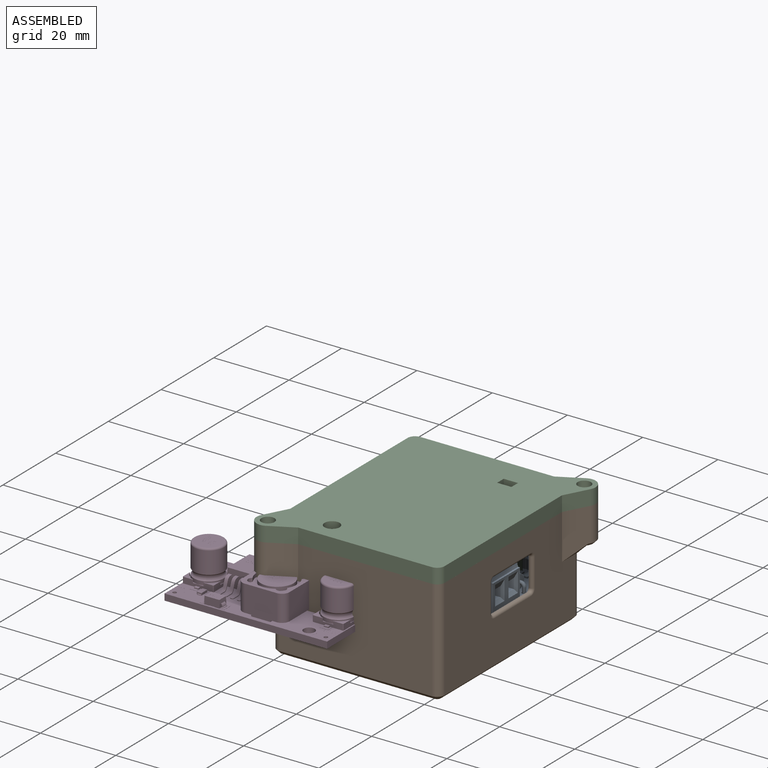
[diagram: assembled view]
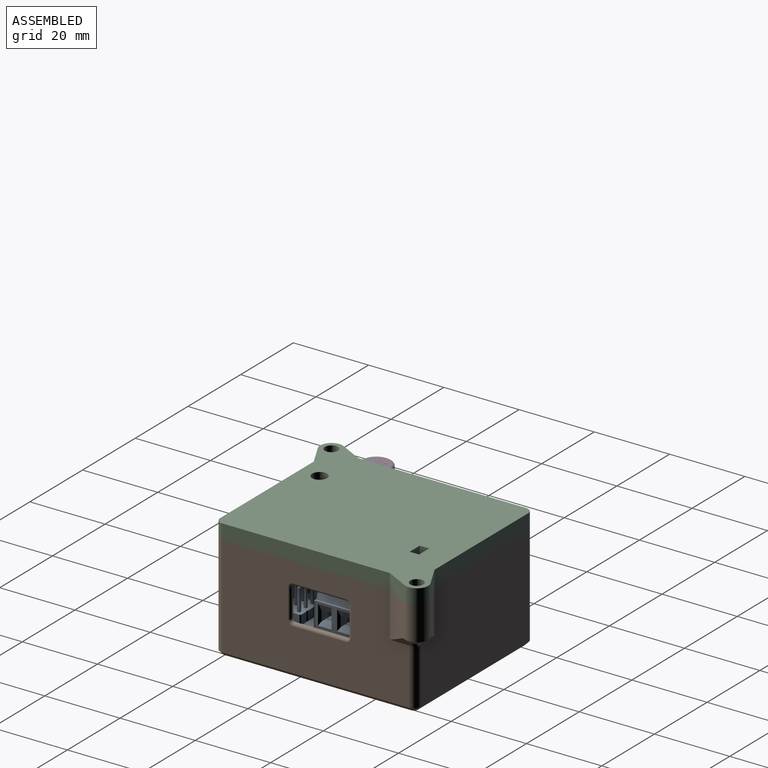
[diagram: assembled view, second angle]
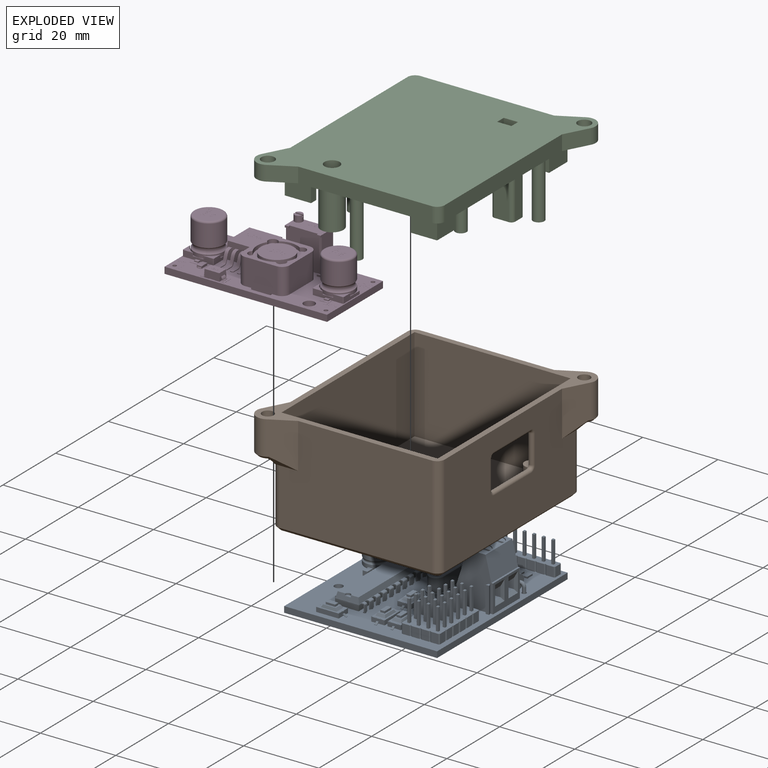
[diagram: exploded view]
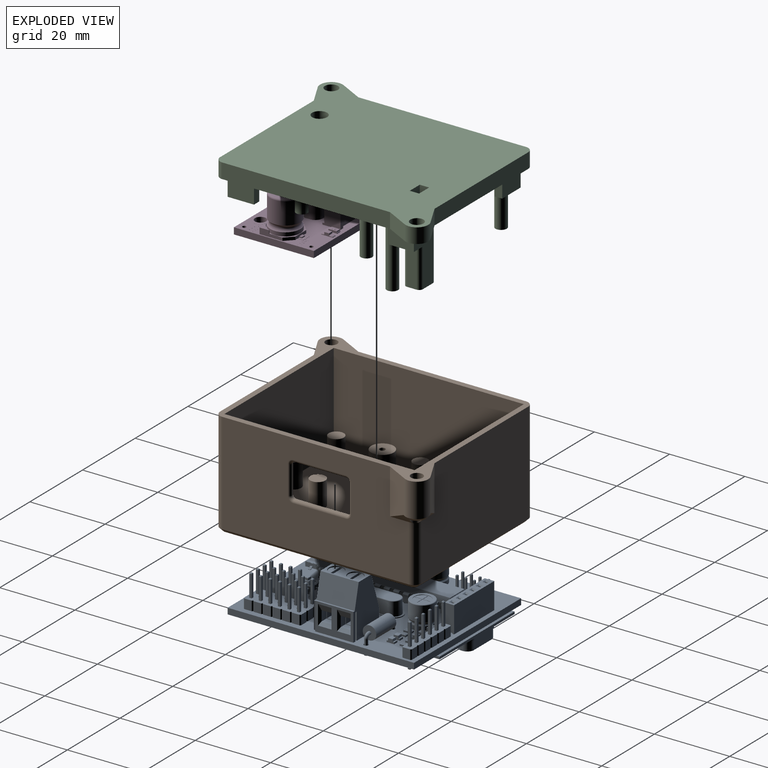
[diagram: exploded view, second angle]
FCSTD DOCUMENT  (FreeCAD 0.19R24366 (Git))
Label: case
License: All rights reserved
LicenseURL: http://en.wikipedia.org/wiki/All_rights_reserved
objects: Part::Feature×72, App::Link×34, Sketcher::SketchObject×17, PartDesign::Pad×17, PartDesign::Pocket×13, App::Part×7, PartDesign::Chamfer×4, PartDesign::Fillet×2, PartDesign::Body×2, PartDesign::CoordinateSystem×1
note: 164 computed .brp shape members not serialized (recipe doc carries the construction recipe); baked Part::Feature solids carry a one-line shape summary decoded from their .brp

FEATURE [PartDesign::CoordinateSystem] Local_CS_5e60
  AttacherType = Attacher::AttachEngine3D
FEATURE [Part::Feature] Pcb_5e60
  Placement = pos=(-87.63,182.88,0) rot=(0,0,1;0rad)
  shape: bbox 49.53 x 40.64 x 1.6 mm, 87 faces (baked)
FEATURE [Sketcher::SketchObject] PCB_Sketch_5e60
  FullyConstrained = false
  sketch-geometry (4):
    g0: LineSegment StartX=0 StartY=40.64 StartZ=0 EndX=49.53 EndY=40.64 EndZ=0
    g1: LineSegment StartX=49.53 StartY=40.64 StartZ=0 EndX=49.53 EndY=0 EndZ=0
    g2: LineSegment StartX=49.53 StartY=0 StartZ=0 EndX=0 EndY=0 EndZ=0
    g3: LineSegment StartX=0 StartY=0 StartZ=0 EndX=0 EndY=40.64 EndZ=0
  constraints (4):
    c: Coincident(g2,g3)
    c: Coincident(g0,g3)
    c: Coincident(g1,g2)
    c: Coincident(g0,g1)
FEATURE [App::Part] Board_Geoms_5e60
  Group = -> [Local_CS_5e60,Pcb_5e60,PCB_Sketch_5e60]
  Origin = -> Origin
FEATURE [Part::Feature] Shape  label="R13_R_0805_2012Metric_9239460ce258"
  Placement = pos=(42.926,5.969,0) rot=(0,0,1;3.14159rad)
  shape: bbox 2 x 1.2 x 0.45 mm, 26 faces (baked)
FEATURE [Part::Feature] Shape001  label="J3_PinHeader_1x04_P254mm_Vertical_8a4efdbcd238"
  Placement = pos=(11.938,10.414,0) rot=(0,0,-1;1.5708rad)
  shape: bbox 10.16 x 2.54 x 11.54 mm, 100 faces (baked)
FEATURE [Part::Feature] Shape002  label="D6_LED_0805_2012Metric_4e96e5ba2d1d"
  Placement = pos=(39.4735,8.128,0) rot=(0,0,1;0rad)
  shape: bbox 2 x 1.25 x 1.1 mm, 50 faces (baked)
FEATURE [App::Link] D6_LED_0805_2012Metric_4e96e5ba2d1d_ln_  label="D3_LED_0805_2012Metric_d2eff50d3d60"
  LinkPlacement = pos=(43.053,28.448,0) rot=(0,0,-1;1.5708rad)
  LinkedObject = -> Shape002
  Placement = pos=(43.053,28.448,0) rot=(0,0,-1;1.5708rad)
FEATURE [Part::Feature] Shape003  label="J2_PinSocket_1x06_P254mm_Vertical_7a796b7907c3"
  Placement = pos=(46.99,18.288,0) rot=(0,0,1;3.14159rad)
  shape: bbox 2.54 x 15.24 x 10.1 mm, 196 faces (baked)
FEATURE [App::Link] R13_R_0805_2012Metric_9239460ce258_ln_  label="R14_R_0805_2012Metric_3532eaaadb21"
  LinkPlacement = pos=(42.926,8.128,0) rot=(0,0,1;3.14159rad)
  LinkedObject = -> Shape
  Placement = pos=(42.926,8.128,0) rot=(0,0,1;3.14159rad)
FEATURE [App::Link] D6_LED_0805_2012Metric_4e96e5ba2d1d_ln_001  label="D2_LED_0805_2012Metric_7b36af262a84"
  LinkPlacement = pos=(42.926,10.2955,0) rot=(0,0,1;3.14159rad)
  LinkedObject = -> Shape002
  Placement = pos=(42.926,10.2955,0) rot=(0,0,1;3.14159rad)
FEATURE [Part::Feature] Shape004  label="SW1_SW_SPST_CK_RS282G05A3_488ee964aa62"
  Placement = pos=(7.366,14.478,0) rot=(0,0,1;0rad)
  shape: bbox 8 x 3.5 x 2.5 mm, 109 faces (baked)
FEATURE [App::Link] R13_R_0805_2012Metric_9239460ce258_ln_001  label="R7_R_0805_2012Metric_1ef3c385b97b"
  LinkPlacement = pos=(39.4735,10.2955,0) rot=(0,0,1;0rad)
  LinkedObject = -> Shape
  Placement = pos=(39.4735,10.2955,0) rot=(0,0,1;0rad)
FEATURE [Part::Feature] Shape005  label="J7_PinHeader_1x06_P254mm_Vertical_94c0aa569162"
  Placement = pos=(4.318,5.334,0) rot=(0,0,1;1.5708rad)
  shape: bbox 15.24 x 2.54 x 11.54 mm, 148 faces (baked)
FEATURE [Part::Feature] Shape006  label="C2_C_0805_2012Metric_5444de25dee9"
  Placement = pos=(43.434,15.24,0) rot=(0,0,1;1.5708rad)
  shape: bbox 1.25 x 2 x 1.25 mm, 28 faces (baked)
FEATURE [App::Link] R13_R_0805_2012Metric_9239460ce258_ln_002  label="R8_R_0805_2012Metric_b32a172a4839"
  LinkPlacement = pos=(43.053,24.9955,0) rot=(0,0,1;1.5708rad)
  LinkedObject = -> Shape
  Placement = pos=(43.053,24.9955,0) rot=(0,0,1;1.5708rad)
FEATURE [App::Link] J7_PinHeader_1x06_P254mm_Vertical_94c0aa569162_ln_  label="J4_PinHeader_1x06_P254mm_Vertical_c8f04728201e"
  LinkPlacement = pos=(17.018,7.874,0) rot=(0,0,-1;1.5708rad)
  LinkedObject = -> Shape005
  Placement = pos=(17.018,7.874,0) rot=(0,0,-1;1.5708rad)
FEATURE [App::Link] SW1_SW_SPST_CK_RS282G05A3_488ee964aa62_ln_  label="SW3_SW_SPST_CK_RS282G05A3_ab11c83a9a79"
  LinkPlacement = pos=(7.366,18.796,0) rot=(0,0,1;0rad)
  LinkedObject = -> Shape004
  Placement = pos=(7.366,18.796,0) rot=(0,0,1;0rad)
FEATURE [App::Link] R13_R_0805_2012Metric_9239460ce258_ln_003  label="R6_R_0805_2012Metric_52bbeaaa678b"
  LinkPlacement = pos=(39.4735,12.3275,0) rot=(0,0,1;0rad)
  LinkedObject = -> Shape
  Placement = pos=(39.4735,12.3275,0) rot=(0,0,1;0rad)
FEATURE [App::Link] C2_C_0805_2012Metric_5444de25dee9_ln_  label="C9_C_0805_2012Metric_db99f0c45e01"
  LinkPlacement = pos=(23.688,35.052,0) rot=(0,0,1;0rad)
  LinkedObject = -> Shape006
  Placement = pos=(23.688,35.052,0) rot=(0,0,1;0rad)
FEATURE [Part::Feature] Shape007  label="C12_CP_Radial_D63mm_P250mm_f7c0eadd8c3e"
  Placement = pos=(29.337,35.433,0) rot=(0,0,1;1.5708rad)
  shape: bbox 8.053 x 7.785 x 8.3 mm, 46 faces (baked)
FEATURE [App::Link] SW1_SW_SPST_CK_RS282G05A3_488ee964aa62_ln_001  label="SW4_SW_SPST_CK_RS282G05A3_2f75d3642137"
  LinkPlacement = pos=(17.272,18.796,0) rot=(0,0,1;3.14159rad)
  LinkedObject = -> Shape004
  Placement = pos=(17.272,18.796,0) rot=(0,0,1;3.14159rad)
FEATURE [App::Link] C12_CP_Radial_D63mm_P250mm_f7c0eadd8c3e_ln_  label="C1_CP_Radial_D63mm_P250mm_bbf1ea3c856d"
  LinkPlacement = pos=(39.878,15.748,0) rot=(0,0,1;1.5708rad)
  LinkedObject = -> Shape007
  Placement = pos=(39.878,15.748,0) rot=(0,0,1;1.5708rad)
FEATURE [App::Link] J7_PinHeader_1x06_P254mm_Vertical_94c0aa569162_ln_001  label="J5_PinHeader_1x06_P254mm_Vertical_0eced9f7dace"
  LinkPlacement = pos=(46.99,2.032,0) rot=(0,0,1;3.14159rad)
  LinkedObject = -> Shape005
  Placement = pos=(46.99,2.032,0) rot=(0,0,1;3.14159rad)
FEATURE [Part::Feature] Shape008  label="J1_TerminalBlock_Phoenix_MKDS_15_2_508_1x02_P508mm_Horizontal_42128cfd7225"
  Placement = pos=(25.141,5.537,0) rot=(0,0,1;0rad)
  shape: bbox 10.9 x 9.8 x 17.3 mm, 89 faces (baked)
FEATURE [Part::Feature] Shape009  label="D4_D_DO-15_P10.16mm_Horizontal_ef1d17ca753a"
  Placement = pos=(35.56,11.938,0) rot=(0,0,-1;1.5708rad)
  shape: bbox 3.62 x 11.28 x 6.61 mm, 15 faces (baked)
FEATURE [App::Link] J7_PinHeader_1x06_P254mm_Vertical_94c0aa569162_ln_002  label="J6_PinHeader_1x06_P254mm_Vertical_8a1521370a01"
  LinkPlacement = pos=(4.318,2.794,0) rot=(0,0,1;1.5708rad)
  LinkedObject = -> Shape005
  Placement = pos=(4.318,2.794,0) rot=(0,0,1;1.5708rad)
FEATURE [App::Link] SW1_SW_SPST_CK_RS282G05A3_488ee964aa62_ln_002  label="SW2_SW_SPST_CK_RS282G05A3_de4650c7a7b3"
  LinkPlacement = pos=(17.272,14.478,0) rot=(0,0,1;3.14159rad)
  LinkedObject = -> Shape004
  Placement = pos=(17.272,14.478,0) rot=(0,0,1;3.14159rad)
FEATURE [App::Link] SW1_SW_SPST_CK_RS282G05A3_488ee964aa62_ln_003  label="SW5_SW_SPST_CK_RS282G05A3_c04ca77f2dcc"
  LinkPlacement = pos=(3.302,30.226,0) rot=(0,0,-1;1.5708rad)
  LinkedObject = -> Shape004
  Placement = pos=(3.302,30.226,0) rot=(0,0,-1;1.5708rad)
FEATURE [Part::Feature] Shape010  label="Y1_Crystal_HC49-4H_Vertical_88712754ffd0"
  Placement = pos=(30.898,18.034,0) rot=(0,0,1;3.14159rad)
  shape: bbox 11.05 x 4.65 x 7 mm, 26 faces (baked)
FEATURE [App::Link] D6_LED_0805_2012Metric_4e96e5ba2d1d_ln_002  label="D1_LED_0805_2012Metric_93ab5e525f13"
  LinkPlacement = pos=(42.926,12.3275,0) rot=(0,0,1;3.14159rad)
  LinkedObject = -> Shape002
  Placement = pos=(42.926,12.3275,0) rot=(0,0,1;3.14159rad)
FEATURE [Part::Feature] Shape011  label="U4_DIP-28_W7.62mm_cc264bb5ac96"
  Placement = pos=(7.376,24.394,0) rot=(0,0,1;1.5708rad)
  shape: bbox 35.56 x 7.874 x 6.98 mm, 488 faces (baked)
FEATURE [App::Link] D6_LED_0805_2012Metric_4e96e5ba2d1d_ln_003  label="D5_LED_0805_2012Metric_81e2c5e28224"
  LinkPlacement = pos=(39.497,5.969,0) rot=(0,0,1;0rad)
  LinkedObject = -> Shape002
  Placement = pos=(39.497,5.969,0) rot=(0,0,1;0rad)
FEATURE [App::Part] Top_5e60
  Group = -> [Shape,Shape001,Shape002,D6_LED_0805_2012Metric_4e96e5ba2d1d_ln_,Shape003,R13_R_0805_2012Metric_9239460ce258_ln_,D6_LED_0805_2012Metric_4e96e5ba2d1d_ln_001,Shape004,R13_R_0805_2012Metric_9239460ce258_ln_001,Shape005,Shape006,R13_R_0805_2012Metric_9239460ce258_ln_002,J7_PinHeader_1x06_P254mm_Vertical_94c0aa569162_ln_,SW1_SW_SPST_CK_RS282G05A3_488ee964aa62_ln_,+15 more]
  Origin = -> Origin003
FEATURE [App::Link] R13_R_0805_2012Metric_9239460ce258_ln_004  label="R10_R_0805_2012Metric_f216959d7d6a"
  LinkPlacement = pos=(4.4215,18.796,-1.6) rot=(1,0,0;3.14159rad)
  LinkedObject = -> Shape
  Placement = pos=(4.4215,18.796,-1.6) rot=(1,0,0;3.14159rad)
FEATURE [App::Link] C2_C_0805_2012Metric_5444de25dee9_ln_001  label="C3_C_0805_2012Metric_346f4854bd54"
  LinkPlacement = pos=(33.528,15.174,-1.6) rot=(0.707107,-0.707107,0;3.14159rad)
  LinkedObject = -> Shape006
  Placement = pos=(33.528,15.174,-1.6) rot=(0.707107,-0.707107,0;3.14159rad)
FEATURE [App::Link] R13_R_0805_2012Metric_9239460ce258_ln_005  label="R11_R_0805_2012Metric_5b75cdb9bece"
  LinkPlacement = pos=(20.1695,18.796,-1.6) rot=(0,1,0;3.14159rad)
  LinkedObject = -> Shape
  Placement = pos=(20.1695,18.796,-1.6) rot=(0,1,0;3.14159rad)
FEATURE [App::Link] C2_C_0805_2012Metric_5444de25dee9_ln_002  label="C6_C_0805_2012Metric_f1bb335fc065"
  LinkPlacement = pos=(32.004,20.066,-1.6) rot=(1,0,0;3.14159rad)
  LinkedObject = -> Shape006
  Placement = pos=(32.004,20.066,-1.6) rot=(1,0,0;3.14159rad)
FEATURE [Part::Feature] Part__Feature  label="NRF24L01 WIFI Module v2"
  shape: bbox 15.25 x 28.5 x 0.63 mm, 6 faces (baked)
FEATURE [Part::Feature] Part__Feature001  label="NRF24L01 WIFI Module v003"
  shape: bbox 9.45 x 4.67 x 1.4 mm, 22 faces (baked)
FEATURE [Part::Feature] Part__Feature002  label="NRF24L01 WIFI Module v004"
  shape: bbox 0.5 x 0.5 x 8.13 mm, 14 faces (baked)
FEATURE [Part::Feature] Part__Feature003  label="NRF24L01 WIFI Module v005"
  shape: bbox 0.5 x 0.5 x 8.13 mm, 14 faces (baked)
FEATURE [Part::Feature] Part__Feature004  label="NRF24L01 WIFI Module v006"
  shape: bbox 0.5 x 0.5 x 8.13 mm, 14 faces (baked)
FEATURE [Part::Feature] Part__Feature005  label="NRF24L01 WIFI Module v007"
  shape: bbox 0.5 x 0.5 x 8.13 mm, 14 faces (baked)
FEATURE [Part::Feature] Part__Feature006  label="NRF24L01 WIFI Module v008"
  shape: bbox 0.5 x 0.5 x 8.13 mm, 14 faces (baked)
FEATURE [Part::Feature] Part__Feature007  label="NRF24L01 WIFI Module v009"
  shape: bbox 0.5 x 0.5 x 8.13 mm, 14 faces (baked)
FEATURE [Part::Feature] Part__Feature008  label="NRF24L01 WIFI Module v010"
  shape: bbox 0.5 x 0.5 x 8.13 mm, 14 faces (baked)
FEATURE [Part::Feature] Part__Feature009  label="NRF24L01 WIFI Module v011"
  shape: bbox 0.5 x 0.5 x 8.13 mm, 14 faces (baked)
FEATURE [Part::Feature] Part__Feature010  label="NRF24L01 WIFI Module v012"
  shape: bbox 4.42 x 10.68 x 3 mm, 130 faces (baked)
FEATURE [Part::Feature] Part__Feature011  label="NRF24L01 WIFI Module v013"
  shape: bbox 4 x 4 x 0.7 mm, 6 faces (baked)
FEATURE [Part::Feature] Part__Feature012  label="NRF24L01 WIFI Module v014"
  shape: bbox 11.53 x 7.8 x 0.02 mm, 36 faces (baked)
FEATURE [Part::Feature] Part__Feature013  label="NRF24L01 WIFI Module v015"
  shape: bbox 0.7 x 1.9 x 0.6 mm, 18 faces (baked)
FEATURE [Part::Feature] Part__Feature014  label="NRF24L01 WIFI Module v016"
  shape: bbox 0.5 x 0.5 x 0.1 mm, 6 faces (baked)
FEATURE [Part::Feature] Part__Feature015  label="NRF24L01 WIFI Module v017"
  shape: bbox 0.7 x 1.9 x 0.6 mm, 18 faces (baked)
FEATURE [Part::Feature] Part__Feature016  label="NRF24L01 WIFI Module v018"
  shape: bbox 0.5 x 0.5 x 0.1 mm, 6 faces (baked)
FEATURE [Part::Feature] Part__Feature017  label="NRF24L01 WIFI Module v019"
  shape: bbox 0.7 x 1.9 x 0.6 mm, 18 faces (baked)
FEATURE [Part::Feature] Part__Feature018  label="NRF24L01 WIFI Module v020"
  shape: bbox 0.5 x 0.5 x 0.1 mm, 6 faces (baked)
FEATURE [Part::Feature] Part__Feature019  label="NRF24L01 WIFI Module v021"
  shape: bbox 0.7 x 1.9 x 0.6 mm, 18 faces (baked)
FEATURE [Part::Feature] Part__Feature020  label="NRF24L01 WIFI Module v022"
  shape: bbox 0.5 x 0.5 x 0.1 mm, 6 faces (baked)
FEATURE [Part::Feature] Part__Feature021  label="NRF24L01 WIFI Module v023"
  shape: bbox 0.7 x 1.9 x 0.6 mm, 18 faces (baked)
FEATURE [Part::Feature] Part__Feature022  label="NRF24L01 WIFI Module v024"
  shape: bbox 0.5 x 0.5 x 0.1 mm, 6 faces (baked)
FEATURE [Part::Feature] Part__Feature023  label="NRF24L01 WIFI Module v025"
  shape: bbox 0.7 x 1.9 x 0.6 mm, 18 faces (baked)
FEATURE [Part::Feature] Part__Feature024  label="NRF24L01 WIFI Module v026"
  shape: bbox 0.5 x 0.5 x 0.1 mm, 6 faces (baked)
FEATURE [Part::Feature] Part__Feature025  label="NRF24L01 WIFI Module v027"
  shape: bbox 1.9 x 0.7 x 0.6 mm, 18 faces (baked)
FEATURE [Part::Feature] Part__Feature026  label="NRF24L01 WIFI Module v028"
  shape: bbox 0.5 x 0.5 x 0.1 mm, 6 faces (baked)
FEATURE [Part::Feature] Part__Feature027  label="NRF24L01 WIFI Module v029"
  shape: bbox 1.9 x 0.7 x 0.6 mm, 18 faces (baked)
FEATURE [Part::Feature] Part__Feature028  label="NRF24L01 WIFI Module v030"
  shape: bbox 0.5 x 0.5 x 0.1 mm, 6 faces (baked)
FEATURE [Part::Feature] Part__Feature029  label="NRF24L01 WIFI Module v031"
  shape: bbox 1.9 x 0.7 x 0.6 mm, 18 faces (baked)
FEATURE [Part::Feature] Part__Feature030  label="NRF24L01 WIFI Module v032"
  shape: bbox 0.5 x 0.5 x 0.1 mm, 6 faces (baked)
FEATURE [Part::Feature] Part__Feature031  label="NRF24L01 WIFI Module v033"
  shape: bbox 0.7 x 1.9 x 0.6 mm, 18 faces (baked)
FEATURE [Part::Feature] Part__Feature032  label="NRF24L01 WIFI Module v034"
  shape: bbox 0.5 x 0.5 x 0.1 mm, 6 faces (baked)
FEATURE [Part::Feature] Part__Feature033  label="NRF24L01 WIFI Module v035"
  shape: bbox 0.7 x 1.9 x 0.6 mm, 18 faces (baked)
FEATURE [Part::Feature] Part__Feature034  label="NRF24L01 WIFI Module v036"
  shape: bbox 0.5 x 0.5 x 0.1 mm, 6 faces (baked)
FEATURE [Part::Feature] Part__Feature035  label="NRF24L01 WIFI Module v037"
  shape: bbox 1.9 x 0.7 x 0.6 mm, 18 faces (baked)
FEATURE [Part::Feature] Part__Feature036  label="NRF24L01 WIFI Module v038"
  shape: bbox 0.5 x 0.5 x 0.1 mm, 6 faces (baked)
FEATURE [Part::Feature] Part__Feature037  label="NRF24L01 WIFI Module v039"
  shape: bbox 1.9 x 0.7 x 0.6 mm, 18 faces (baked)
FEATURE [Part::Feature] Part__Feature038  label="NRF24L01 WIFI Module v040"
  shape: bbox 0.5 x 0.5 x 0.1 mm, 6 faces (baked)
FEATURE [Part::Feature] Part__Feature039  label="NRF24L01 WIFI Module v041"
  shape: bbox 1.9 x 0.7 x 0.6 mm, 18 faces (baked)
FEATURE [Part::Feature] Part__Feature040  label="NRF24L01 WIFI Module v042"
  shape: bbox 0.5 x 0.5 x 0.1 mm, 6 faces (baked)
FEATURE [Part::Feature] Part__Feature041  label="NRF24L01 WIFI Module v043"
  shape: bbox 1.9 x 0.7 x 0.6 mm, 18 faces (baked)
FEATURE [Part::Feature] Part__Feature042  label="NRF24L01 WIFI Module v044"
  shape: bbox 0.5 x 0.5 x 0.1 mm, 6 faces (baked)
FEATURE [Part::Feature] Part__Feature043  label="NRF24L01 WIFI Module v045"
  shape: bbox 0.7 x 1.9 x 0.6 mm, 18 faces (baked)
FEATURE [Part::Feature] Part__Feature044  label="NRF24L01 WIFI Module v046"
  shape: bbox 0.5 x 0.5 x 0.1 mm, 6 faces (baked)
FEATURE [Part::Feature] Part__Feature045  label="NRF24L01 WIFI Module v047"
  shape: bbox 9.546 x 4.967 x 0.05 mm, 10 faces (baked)
FEATURE [App::Part] NRF24L01_WIFI_Module_v2  label="U3_NRF24L01 WIFI Module v048_7e74c5e8a189"
  Group = -> [Part__Feature,Part__Feature001,Part__Feature002,Part__Feature003,Part__Feature004,Part__Feature005,Part__Feature006,Part__Feature007,Part__Feature008,Part__Feature009,Part__Feature010,Part__Feature011,Part__Feature012,Part__Feature013,Part__Feature014,Part__Feature015,Part__Feature016,Part__Feature017,Part__Feature018,Part__Feature019,Part__Feature020,Part__Feature021,Part__Feature022,+23 more]
  Origin = -> Origin008
  Placement = pos=(33.195,39.719,-3.1) rot=(1,0,0;3.14159rad)
FEATURE [App::Link] R13_R_0805_2012Metric_9239460ce258_ln_006  label="R2_R_0805_2012Metric_b346234888c6"
  LinkPlacement = pos=(17.272,17.9305,-1.6) rot=(0.707107,-0.707107,0;3.14159rad)
  LinkedObject = -> Shape
  Placement = pos=(17.272,17.9305,-1.6) rot=(0.707107,-0.707107,0;3.14159rad)
FEATURE [App::Link] C2_C_0805_2012Metric_5444de25dee9_ln_003  label="C10_C_0805_2012Metric_faaf85beb588"
  LinkPlacement = pos=(25.08,27.94,-1.6) rot=(0,1,0;3.14159rad)
  LinkedObject = -> Shape006
  Placement = pos=(25.08,27.94,-1.6) rot=(0,1,0;3.14159rad)
FEATURE [App::Link] R13_R_0805_2012Metric_9239460ce258_ln_007  label="R3_R_0805_2012Metric_a6f29405e00f"
  LinkPlacement = pos=(35.56,9.398,-1.6) rot=(0,1,0;3.14159rad)
  LinkedObject = -> Shape
  Placement = pos=(35.56,9.398,-1.6) rot=(0,1,0;3.14159rad)
FEATURE [App::Link] C2_C_0805_2012Metric_5444de25dee9_ln_004  label="C7_C_0805_2012Metric_8a59f77c550b"
  LinkPlacement = pos=(28.702,27.94,-1.6) rot=(1,0,0;3.14159rad)
  LinkedObject = -> Shape006
  Placement = pos=(28.702,27.94,-1.6) rot=(1,0,0;3.14159rad)
FEATURE [App::Link] C2_C_0805_2012Metric_5444de25dee9_ln_005  label="C8_C_0805_2012Metric_eb188588e636"
  LinkPlacement = pos=(24.958,20.066,-1.6) rot=(0,1,0;3.14159rad)
  LinkedObject = -> Shape006
  Placement = pos=(24.958,20.066,-1.6) rot=(0,1,0;3.14159rad)
FEATURE [App::Link] R13_R_0805_2012Metric_9239460ce258_ln_008  label="R5_R_0805_2012Metric_46a83cf80d7d"
  LinkPlacement = pos=(35.56,5.334,-1.6) rot=(1,0,0;3.14159rad)
  LinkedObject = -> Shape
  Placement = pos=(35.56,5.334,-1.6) rot=(1,0,0;3.14159rad)
FEATURE [Part::Feature] Shape012  label="U1_SOT_223_2d4c363a9a8a"
  Placement = pos=(39.116,17.272,-1.6) rot=(1,0,0;3.14159rad)
  shape: bbox 7 x 6.5 x 1.7 mm, 78 faces (baked)
FEATURE [App::Link] C2_C_0805_2012Metric_5444de25dee9_ln_006  label="C11_C_0805_2012Metric_80d779149e98"
  LinkPlacement = pos=(31.877,36.383,-1.6) rot=(0.707107,0.707107,0;3.14159rad)
  LinkedObject = -> Shape006
  Placement = pos=(31.877,36.383,-1.6) rot=(0.707107,0.707107,0;3.14159rad)
FEATURE [App::Link] C2_C_0805_2012Metric_5444de25dee9_ln_007  label="C5_C_0805_2012Metric_b0587e8d2503"
  LinkPlacement = pos=(25.08,29.972,-1.6) rot=(0,1,0;3.14159rad)
  LinkedObject = -> Shape006
  Placement = pos=(25.08,29.972,-1.6) rot=(0,1,0;3.14159rad)
FEATURE [App::Link] R13_R_0805_2012Metric_9239460ce258_ln_009  label="R1_R_0805_2012Metric_78e1bd1c3511"
  LinkPlacement = pos=(4.4215,14.478,-1.6) rot=(1,0,0;3.14159rad)
  LinkedObject = -> Shape
  Placement = pos=(4.4215,14.478,-1.6) rot=(1,0,0;3.14159rad)
FEATURE [App::Link] C2_C_0805_2012Metric_5444de25dee9_ln_008  label="C4_C_0805_2012Metric_7c6e95933206"
  LinkPlacement = pos=(31.496,15.174,-1.6) rot=(0.707107,-0.707107,0;3.14159rad)
  LinkedObject = -> Shape006
  Placement = pos=(31.496,15.174,-1.6) rot=(0.707107,-0.707107,0;3.14159rad)
FEATURE [App::Link] R13_R_0805_2012Metric_9239460ce258_ln_010  label="R9_R_0805_2012Metric_877dc3567706"
  LinkPlacement = pos=(20.1695,14.478,-1.6) rot=(0,1,0;3.14159rad)
  LinkedObject = -> Shape
  Placement = pos=(20.1695,14.478,-1.6) rot=(0,1,0;3.14159rad)
FEATURE [App::Link] R13_R_0805_2012Metric_9239460ce258_ln_011  label="R4_R_0805_2012Metric_da433569ba1b"
  LinkPlacement = pos=(35.56,7.366,-1.6) rot=(1,0,0;3.14159rad)
  LinkedObject = -> Shape
  Placement = pos=(35.56,7.366,-1.6) rot=(1,0,0;3.14159rad)
FEATURE [App::Link] R13_R_0805_2012Metric_9239460ce258_ln_012  label="R12_R_0805_2012Metric_a00a492684a0"
  LinkPlacement = pos=(3.302,25.2495,-1.6) rot=(0.707107,0.707107,0;3.14159rad)
  LinkedObject = -> Shape
  Placement = pos=(3.302,25.2495,-1.6) rot=(0.707107,0.707107,0;3.14159rad)
FEATURE [App::Part] Bot_5e60
  Group = -> [R13_R_0805_2012Metric_9239460ce258_ln_004,C2_C_0805_2012Metric_5444de25dee9_ln_001,R13_R_0805_2012Metric_9239460ce258_ln_005,C2_C_0805_2012Metric_5444de25dee9_ln_002,NRF24L01_WIFI_Module_v2,R13_R_0805_2012Metric_9239460ce258_ln_006,C2_C_0805_2012Metric_5444de25dee9_ln_003,R13_R_0805_2012Metric_9239460ce258_ln_007,C2_C_0805_2012Metric_5444de25dee9_ln_004,C2_C_0805_2012Metric_5444de25dee9_ln_005,+9 more]
  Origin = -> Origin004
FEATURE [App::Part] Step_Models_5e60
  Group = -> [Top_5e60,Bot_5e60]
  Origin = -> Origin002
FEATURE [App::Part] Board_5e60  label="RC Reciever"
  Group = -> [Board_Geoms_5e60,Step_Models_5e60]
  Origin = -> Origin001
  Placement = pos=(42,2,8.6e-15) rot=(0,0,-1;4.71239rad)
FEATURE [Part::Feature] Part__Feature046  label="lm2596board"
  shape: bbox 43.2 x 1.71 x 21.25 mm, 176 faces (baked)
FEATURE [Part::Feature] Part__Feature047  label="smd100uF"
  Placement = pos=(-17.25,2.55,0) rot=(0,1,0;1.5708rad)
  shape: bbox 9.958 x 9.76 x 11.2 mm, 147 faces, 6 solids (baked)
FEATURE [Part::Feature] Part__Feature048  label="smd220uF"
  Placement = pos=(17.25,2.55,-4e-15) rot=(0,1,0;1.5708rad)
  shape: bbox 9.958 x 9.76 x 11.2 mm, 166 faces, 6 solids (baked)
FEATURE [Part::Feature] Part__Feature049  label="TrimmerW203"
  Placement = pos=(4.62706,6.95,-9.12758) rot=(0,0,1;0rad)
  shape: bbox 9.5 x 15.15 x 4.81 mm, 286 faces, 5 solids (baked)
FEATURE [Part::Feature] Part__Feature050  label="smdS537diode"
  Placement = pos=(-9.35,1.75,8.875) rot=(0,1,0;3.14159rad)
  shape: bbox 6.502 x 2.062 x 2.502 mm, 129 faces, 5 solids (baked)
FEATURE [Part::Feature] Part__Feature051  label="smdceramiccapacitor"
  Placement = pos=(-15,1.7,5.79694) rot=(0,-1,0;1.5708rad)
  shape: bbox 1.301 x 0.6074 x 2.501 mm, 28 faces, 3 solids (baked)
FEATURE [Part::Feature] Part__Feature052  label="smdceramiccapacitor001"
  Placement = pos=(-1.31957,1.7,-5.29156) rot=(0,-1,0;1.5708rad)
  shape: bbox 1.301 x 0.6074 x 2.501 mm, 28 faces, 3 solids (baked)
FEATURE [Part::Feature] Part__Feature053  label="smdResistor331"
  Placement = pos=(-1.26957,1.7,-8.46654) rot=(0,-1,0;1.5708rad)
  shape: bbox 1.307 x 0.6262 x 2.511 mm, 75 faces, 3 solids (baked)
FEATURE [Part::Feature] Part__Feature054  label="smdResistor102"
  Placement = pos=(10.7771,1.7,-8.46654) rot=(0,1,0;1.5708rad)
  shape: bbox 1.307 x 0.6262 x 2.511 mm, 62 faces, 3 solids (baked)
FEATURE [Part::Feature] Part__Feature055  label="smdLED"
  Placement = pos=(13.0521,1.75,-8.47007) rot=(0,1,0;1.5708rad)
  shape: bbox 1.251 x 0.8605 x 3.231 mm, 22 faces, 2 solids (baked)
FEATURE [Part::Feature] Part__Feature056  label="smbInductor470"
  Placement = pos=(3.12706,2.1,3.175) rot=(0,0,1;0rad)
  shape: bbox 12.5 x 7.41 x 12.5 mm, 73 faces, 3 solids (baked)
FEATURE [Part::Feature] Part__Feature057  label="LM2596S"
  Placement = pos=(-8.06266,1.8,-4.54066) rot=(0,0,1;0rad)
  shape: bbox 9.8 x 4.61 x 14.95 mm, 175 faces, 7 solids (baked)
FEATURE [App::Part] converterLM2596
  Group = -> [Part__Feature046,Part__Feature047,Part__Feature048,Part__Feature049,Part__Feature050,Part__Feature051,Part__Feature052,Part__Feature053,Part__Feature054,Part__Feature055,Part__Feature056,Part__Feature057]
  Origin = -> Origin010
  Placement = pos=(0,0,0) rot=(1,0,0;1.5708rad)
FEATURE [Sketcher::SketchObject] Sketch
  FullyConstrained = true
  MapMode = 5
  Support = -> [XY_Plane009]
  sketch-geometry (4):
    g0: LineSegment StartX=0 StartY=0 StartZ=0 EndX=44.5 EndY=0 EndZ=0
    g1: LineSegment StartX=44.5 StartY=0 StartZ=0 EndX=44.5 EndY=53.5 EndZ=0
    g2: LineSegment StartX=44.5 StartY=53.5 StartZ=0 EndX=0 EndY=53.5 EndZ=0
    g3: LineSegment StartX=0 StartY=53.5 StartZ=0 EndX=0 EndY=0 EndZ=0
  constraints (11):
    c: Coincident(g0,g1)
    c: Coincident(g1,g2)
    c: Coincident(g2,g3)
    c: Coincident(g3,g0)
    c: Horizontal(g0)
    c: Horizontal(g2)
    c: Vertical(g1)
    c: Vertical(g3)
    c: Coincident(g0,g-1)
    c: Distance(g2) = 44.5
    c: Distance(g1) = 53.5
FEATURE [PartDesign::Pad] Pad
  Direction = (1,1,1)
  Length = 3
  Length2 = 100
  Profile = -> Sketch
  Type = 0
FEATURE [Sketcher::SketchObject] Sketch001
  ExternalGeometry = -> [Pad]
  FullyConstrained = true
  MapMode = 5
  Placement = pos=(0,0,3) rot=(0,0,1;0rad)
  Support = -> [Pad]
  sketch-geometry (8):
    g0: LineSegment StartX=1.5 StartY=1.5 StartZ=0 EndX=43 EndY=1.5 EndZ=0
    g1: LineSegment StartX=43 StartY=1.5 StartZ=0 EndX=43 EndY=52 EndZ=0
    g2: LineSegment StartX=43 StartY=52 StartZ=0 EndX=1.5 EndY=52 EndZ=0
    g3: LineSegment StartX=1.5 StartY=52 StartZ=0 EndX=1.5 EndY=1.5 EndZ=0
    g4: LineSegment StartX=0 StartY=53.5 StartZ=0 EndX=44.5 EndY=53.5 EndZ=0
    g5: LineSegment StartX=44.5 StartY=53.5 StartZ=0 EndX=44.5 EndY=0 EndZ=0
    g6: LineSegment StartX=44.5 StartY=0 StartZ=0 EndX=0 EndY=0 EndZ=0
    g7: LineSegment StartX=0 StartY=0 StartZ=0 EndX=0 EndY=53.5 EndZ=0
  constraints (22):
    c: Coincident(g0,g1)
    c: Coincident(g1,g2)
    c: Coincident(g2,g3)
    c: Coincident(g3,g0)
    c: Horizontal(g0)
    c: Horizontal(g2)
    c: Vertical(g1)
    c: Vertical(g3)
    c: Distance(g2,g-4) = 1.5
    c: Distance(g2,g-3) = 1.5
    c: Distance(g0,g-6) = 1.5
    c: Distance(g0,g-5) = 1.5
    c: Coincident(g4,g5)
    c: Coincident(g5,g6)
    c: Coincident(g6,g7)
    c: Coincident(g7,g4)
    c: Horizontal(g4)
    c: Horizontal(g6)
    c: Vertical(g5)
    c: Vertical(g7)
    c: Coincident(g4,g-4)
    c: Coincident(g5,g-6)
FEATURE [PartDesign::Pad] Pad001
  BaseFeature = -> Pad
  Direction = (1,1,1)
  Length = 28
  Length2 = 100
  Profile = -> Sketch001
  Refine = true
  Reversed = true
  Type = 0
FEATURE [Sketcher::SketchObject] Sketch002
  FullyConstrained = false
  MapMode = 5
  Placement = pos=(0,0,0) rot=(1,0,0;3.14159rad)
  Support = -> [Pad001]
  sketch-geometry (8):
    g0: Circle CenterX=5.14503 CenterY=-22.9592 CenterZ=0 NormalX=0 NormalY=0 NormalZ=1 AngleXU=0 Radius=2
    g1: Circle CenterX=16.3884 CenterY=-29.3044 CenterZ=0 NormalX=0 NormalY=0 NormalZ=1 AngleXU=0 Radius=2
    g2: Circle CenterX=5.90153 CenterY=-43.5894 CenterZ=0 NormalX=0 NormalY=0 NormalZ=1 AngleXU=0 Radius=2
    g3: Circle CenterX=38.8461 CenterY=-17.3179 CenterZ=0 NormalX=0 NormalY=0 NormalZ=1 AngleXU=0 Radius=3
    g4: Circle CenterX=18.5073 CenterY=-14.3945 CenterZ=0 NormalX=0 NormalY=0 NormalZ=1 AngleXU=0 Radius=2
    g5: Circle CenterX=23.796 CenterY=-4.27424 CenterZ=0 NormalX=0 NormalY=0 NormalZ=1 AngleXU=0 Radius=2
    g6: Circle CenterX=38.9322 CenterY=-5.00552 CenterZ=0 NormalX=0 NormalY=0 NormalZ=1 AngleXU=0 Radius=2
    g7: Circle CenterX=38.5296 CenterY=-27.6784 CenterZ=0 NormalX=0 NormalY=0 NormalZ=1 AngleXU=0 Radius=2
  constraints (8):
    c: Diameter(g6) = 4
    c: Equal(g0,g1)
    c: Equal(g1,g2)
    c: Equal(g2,g4)
    c: Equal(g4,g5)
    c: Equal(g5,g6)
    c: Diameter(g3) = 6
    c: Equal(g7,g4)
FEATURE [PartDesign::Pad] Pad002
  BaseFeature = -> Pad001
  Direction = (1,1,1)
  Length = 6.5
  Length2 = 100
  Profile = -> Sketch002
  Type = 0
FEATURE [Sketcher::SketchObject] Sketch003
  ExternalGeometry = -> [Pad002]
  FullyConstrained = true
  MapMode = 5
  Placement = pos=(0,0,-6.5) rot=(1,0,0;3.14159rad)
  Support = -> [Pad002]
  sketch-geometry (1):
    g0: Circle CenterX=38.8461 CenterY=-17.3179 CenterZ=0 NormalX=0 NormalY=0 NormalZ=1 AngleXU=0 Radius=0.75
  constraints (2):
    c: Coincident(g0,g-3)
    c: Diameter(g0) = 1.5
FEATURE [PartDesign::Pocket] Pocket
  BaseFeature = -> Pad002
  Length = 8
  Length2 = 100
  Profile = -> Sketch003
  Type = 0
FEATURE [Sketcher::SketchObject] Sketch004
  ExternalGeometry = -> [Pocket]
  FullyConstrained = true
  MapMode = 5
  Placement = pos=(0,0,-25) rot=(1,0,0;3.14159rad)
  Support = -> [Pocket]
  sketch-geometry (12):
    g0: ArcOfCircle CenterX=45.1213 CenterY=0.62132 CenterZ=0 NormalX=0 NormalY=0 NormalZ=1 AngleXU=0 Radius=3 StartAngle=5.79662 EndAngle=8.34055
    g1: ArcOfCircle CenterX=-0.62132 CenterY=-54.1213 CenterZ=0 NormalX=0 NormalY=0 NormalZ=1 AngleXU=0 Radius=3 StartAngle=2.65503 EndAngle=5.19895
    g2: LineSegment StartX=44.5 StartY=0 StartZ=0 EndX=45.1213 EndY=0.62132 EndZ=0
    g3: LineSegment StartX=0 StartY=-53.5 StartZ=0 EndX=-0.62132 EndY=-54.1213 EndZ=0
    g4: LineSegment StartX=0.781459 StartY=-56.7732 StartZ=0 EndX=6.96907 EndY=-53.5 EndZ=0
    g5: LineSegment StartX=-3.27315 StartY=-52.7185 StartZ=0 EndX=0 EndY=-46.5309 EndZ=0
    g6: LineSegment StartX=47.7732 StartY=-0.781459 StartZ=0 EndX=44.5 EndY=-6.96907 EndZ=0
    g7: LineSegment StartX=43.7185 StartY=3.27315 StartZ=0 EndX=37.5309 EndY=0 EndZ=0
    g8: LineSegment StartX=0 StartY=-46.5309 StartZ=0 EndX=0 EndY=-53.5 EndZ=0
    g9: LineSegment StartX=0 StartY=-53.5 StartZ=0 EndX=6.96907 EndY=-53.5 EndZ=0
    g10: LineSegment StartX=37.5309 StartY=0 StartZ=0 EndX=44.5 EndY=0 EndZ=0
    g11: LineSegment StartX=44.5 StartY=0 StartZ=0 EndX=44.5 EndY=-6.96907 EndZ=0
  constraints (30):
    c: PointOnObject(g-5,g0)
    c: PointOnObject(g-6,g1)
    c: Equal(g1,g0)
    c: Diameter(g1) = 6
    c: Coincident(g2,g-4)
    c: Coincident(g2,g0)
    c: Angle(g-4,g2) = 2.35619
    c: Coincident(g3,g-8)
    c: Coincident(g3,g1)
    c: Angle(g-8,g3) = 2.35619
    c: PointOnObject(g4,g-7)
    c: PointOnObject(g5,g-8)
    c: PointOnObject(g6,g-4)
    c: PointOnObject(g7,g-3)
    c: Equal(g7,g6)
    c: Equal(g6,g5)
    c: Equal(g5,g4)
    c: Distance(g6) = 7
    c: Tangent(g0,g6) = 1.5708
    c: Tangent(g0,g7) = -1.5708
    c: Tangent(g1,g5) = 1.5708
    c: Tangent(g1,g4) = -1.5708
    c: Coincident(g8,g5)
    c: Coincident(g8,g3)
    c: Coincident(g9,g8)
    c: Coincident(g9,g4)
    c: Coincident(g10,g7)
    c: Coincident(g10,g2)
    c: Coincident(g11,g10)
    c: Coincident(g11,g6)
FEATURE [PartDesign::Pad] Pad003
  BaseFeature = -> Pocket
  Direction = (1,1,1)
  Length = 10
  Length2 = 100
  Profile = -> Sketch004
  Reversed = true
  Type = 0
FEATURE [PartDesign::Chamfer] Chamfer
  Angle = 45
  Base = -> Pad003 [Edge32,Edge18,Edge22,Edge29]
  BaseFeature = -> Pad003
  ChamferType = 0
  FlipDirection = false
  Refine = true
  Size = 2
  Size2 = 1
  SupportTransform = false
FEATURE [Sketcher::SketchObject] Sketch005
  ExternalGeometry = -> [Chamfer]
  FullyConstrained = true
  MapMode = 5
  Placement = pos=(0,0,-25) rot=(1,0,0;3.14159rad)
  Support = -> [Chamfer]
  sketch-geometry (2):
    g0: Circle CenterX=-0.62132 CenterY=-54.1213 CenterZ=0 NormalX=0 NormalY=0 NormalZ=1 AngleXU=0 Radius=1.55
    g1: Circle CenterX=45.1213 CenterY=0.62132 CenterZ=0 NormalX=0 NormalY=0 NormalZ=1 AngleXU=0 Radius=1.55
  constraints (4):
    c: Coincident(g0,g-4)
    c: Diameter(g0) = 3.1
    c: Coincident(g1,g-3)
    c: Diameter(g1) = 3.1
FEATURE [PartDesign::Pocket] Pocket001
  BaseFeature = -> Chamfer
  Length = 12
  Length2 = 100
  Profile = -> Sketch005
  Type = 0
FEATURE [PartDesign::Chamfer] Chamfer001
  Angle = 45
  Base = -> Pocket001 [Edge64,Edge54]
  BaseFeature = -> Pocket001
  ChamferType = 0
  FlipDirection = false
  Size = 1
  Size2 = 1
  SupportTransform = false
FEATURE [Sketcher::SketchObject] Sketch006
  FullyConstrained = false
  MapMode = 5
  Placement = pos=(0,0,-15) rot=(0,0,1;0rad)
  Support = -> [Chamfer001]
  sketch-geometry (8):
    g0: LineSegment StartX=-2.66547 StartY=56.4105 StartZ=0 EndX=-0.96287 EndY=56.4105 EndZ=0
    g1: LineSegment StartX=-0.96287 StartY=56.4105 StartZ=0 EndX=-0.96287 EndY=54.3115 EndZ=0
    g2: LineSegment StartX=-0.96287 StartY=54.3115 StartZ=0 EndX=-2.66547 EndY=54.3115 EndZ=0
    g3: LineSegment StartX=-2.66547 StartY=54.3115 StartZ=0 EndX=-2.66547 EndY=56.4105 EndZ=0
    g4: LineSegment StartX=45.2052 StartY=-0.882229 StartZ=0 EndX=47.4153 EndY=-0.882229 EndZ=0
    g5: LineSegment StartX=47.4153 StartY=-0.882229 StartZ=0 EndX=47.4153 EndY=-2.57907 EndZ=0
    g6: LineSegment StartX=47.4153 StartY=-2.57907 StartZ=0 EndX=45.2052 EndY=-2.57907 EndZ=0
    g7: LineSegment StartX=45.2052 StartY=-2.57907 StartZ=0 EndX=45.2052 EndY=-0.882229 EndZ=0
  constraints (16):
    c: Coincident(g0,g1)
    c: Coincident(g1,g2)
    c: Coincident(g2,g3)
    c: Coincident(g3,g0)
    c: Horizontal(g0)
    c: Horizontal(g2)
    c: Vertical(g1)
    c: Vertical(g3)
    c: Coincident(g4,g5)
    c: Coincident(g5,g6)
    c: Coincident(g6,g7)
    c: Coincident(g7,g4)
    c: Horizontal(g4)
    c: Horizontal(g6)
    c: Vertical(g5)
    c: Vertical(g7)
FEATURE [PartDesign::Pocket] Pocket002
  BaseFeature = -> Chamfer001
  Length = 5
  Length2 = 100
  Profile = -> Sketch006
  Refine = true
  Reversed = true
  Type = 0
FEATURE [PartDesign::Chamfer] Chamfer002
  Angle = 45
  Base = -> Pocket002 [Edge29,Edge95]
  BaseFeature = -> Pocket002
  ChamferType = 0
  FlipDirection = false
  Size = 0.4
  Size2 = 1
  SupportTransform = false
FEATURE [Sketcher::SketchObject] Sketch007
  ExternalGeometry = -> [Chamfer002]
  FullyConstrained = true
  MapMode = 5
  Placement = pos=(0,0,3) rot=(0,0,1;0rad)
  Support = -> [Chamfer002]
  sketch-geometry (12):
    g0: ArcOfCircle CenterX=42.5 CenterY=51.5 CenterZ=0 NormalX=0 NormalY=0 NormalZ=1 AngleXU=0 Radius=2 StartAngle=1.8e-15 EndAngle=1.5708
    g1: ArcOfCircle CenterX=2 CenterY=51.5 CenterZ=0 NormalX=0 NormalY=0 NormalZ=1 AngleXU=0 Radius=2 StartAngle=1.5708 EndAngle=3.14159
    g2: ArcOfCircle CenterX=2 CenterY=2 CenterZ=0 NormalX=0 NormalY=0 NormalZ=1 AngleXU=0 Radius=2 StartAngle=3.14159 EndAngle=4.71239
    g3: ArcOfCircle CenterX=42.5 CenterY=2 CenterZ=0 NormalX=0 NormalY=0 NormalZ=1 AngleXU=0 Radius=2 StartAngle=4.71239 EndAngle=6.28319
    g4: LineSegment StartX=42.5 StartY=0 StartZ=0 EndX=44.5 EndY=0 EndZ=0
    g5: LineSegment StartX=44.5 StartY=2 StartZ=0 EndX=44.5 EndY=0 EndZ=0
    g6: LineSegment StartX=44.5 StartY=51.5 StartZ=0 EndX=44.5 EndY=53.5 EndZ=0
    g7: LineSegment StartX=44.5 StartY=53.5 StartZ=0 EndX=42.5 EndY=53.5 EndZ=0
    g8: LineSegment StartX=0 StartY=53.5 StartZ=0 EndX=2 EndY=53.5 EndZ=0
    g9: LineSegment StartX=0 StartY=51.5 StartZ=0 EndX=0 EndY=53.5 EndZ=0
    g10: LineSegment StartX=0 StartY=2 StartZ=0 EndX=0 EndY=0 EndZ=0
    g11: LineSegment StartX=0 StartY=0 StartZ=0 EndX=2 EndY=1.528e-13 EndZ=0
  constraints (36):
    c: Coincident(g7,g0) = 1.5708
    c: Coincident(g6,g0) = 1.5708
    c: Coincident(g8,g1) = 1.5708
    c: Coincident(g9,g1) = 1.5708
    c: Coincident(g10,g2) = 1.5708
    c: Coincident(g11,g2) = 1.5708
    c: Coincident(g4,g3) = 1.5708
    c: Coincident(g5,g3) = 1.5708
    c: Distance(g6,g0) = 2
    c: PointOnObject(g6,g-5)
    c: PointOnObject(g7,g-3)
    c: PointOnObject(g9,g-4)
    c: Distance(g1,g8) = 2
    c: PointOnObject(g11,g-6)
    c: Distance(g2,g11) = 2
    c: Distance(g3,g4) = 2
    c: Coincident(g4,g-6)
    c: Horizontal(g4)
    c: Coincident(g5,g4)
    c: Vertical(g5)
    c: Coincident(g6,g-5)
    c: Coincident(g7,g6)
    c: Coincident(g8,g-4)
    c: Horizontal(g8)
    c: Coincident(g9,g8)
    c: Coincident(g10,g-1)
    c: Vertical(g10)
    c: Coincident(g11,g10)
    c: Distance(g8) = 2
    c: Equal(g8,g9)
    c: Equal(g9,g10)
    c: Equal(g10,g11)
    c: Equal(g11,g4)
    c: Equal(g4,g5)
    c: Equal(g5,g6)
    c: Equal(g6,g7)
FEATURE [PartDesign::Pocket] Pocket003
  BaseFeature = -> Chamfer002
  Length = 16
  Length2 = 100
  Profile = -> Sketch007
  Type = 0
FEATURE [PartDesign::Pocket] Pocket004
  BaseFeature = -> Pocket003
  Length = 12
  Length2 = 100
  Profile = -> Pocket003 [Face20]
  Type = 0
FEATURE [PartDesign::Pocket] Pocket005
  BaseFeature = -> Pocket004
  Length = 12
  Length2 = 100
  Profile = -> Pocket004 [Face36]
  Refine = true
  Type = 0
FEATURE [Sketcher::SketchObject] Sketch008
  FullyConstrained = true
  MapMode = 5
  Support = -> [XY_Plane011]
  sketch-geometry (22):
    g0: LineSegment StartX=0 StartY=0 StartZ=0 EndX=44.5 EndY=0 EndZ=0
    g1: LineSegment StartX=44.5 StartY=0 StartZ=0 EndX=44.5 EndY=53.5 EndZ=0
    g2: LineSegment StartX=44.5 StartY=53.5 StartZ=0 EndX=0 EndY=53.5 EndZ=0
    g3: LineSegment StartX=0 StartY=53.5 StartZ=0 EndX=0 EndY=0 EndZ=0
    g4: LineSegment StartX=1.5 StartY=1.5 StartZ=0 EndX=43 EndY=1.5 EndZ=0
    g5: LineSegment StartX=43 StartY=1.5 StartZ=0 EndX=43 EndY=52 EndZ=0
    g6: LineSegment StartX=43 StartY=52 StartZ=0 EndX=1.5 EndY=52 EndZ=0
    g7: LineSegment StartX=1.5 StartY=52 StartZ=0 EndX=1.5 EndY=1.5 EndZ=0
    g8: ArcOfCircle CenterX=-0.622254 CenterY=-0.622254 CenterZ=0 NormalX=0 NormalY=0 NormalZ=1 AngleXU=0 Radius=3 StartAngle=2.6549 EndAngle=5.19908
    g9: ArcOfCircle CenterX=45.1223 CenterY=54.1223 CenterZ=0 NormalX=0 NormalY=0 NormalZ=1 AngleXU=0 Radius=3 StartAngle=5.7965 EndAngle=8.34067
    g10: LineSegment StartX=44.5 StartY=53.5 StartZ=0 EndX=45.1223 EndY=54.1223 EndZ=0
    g11: LineSegment StartX=0 StartY=0 StartZ=0 EndX=-0.622254 EndY=-0.622254 EndZ=0
    g12: LineSegment StartX=-3.27391 StartY=0.780852 StartZ=0 EndX=0 EndY=6.96806 EndZ=0
    g13: LineSegment StartX=0.780852 StartY=-3.27391 StartZ=0 EndX=6.96806 EndY=0 EndZ=0
    g14: LineSegment StartX=47.7739 StartY=52.7191 StartZ=0 EndX=44.5 EndY=46.5319 EndZ=0
    g15: LineSegment StartX=43.7191 StartY=56.7739 StartZ=0 EndX=37.5319 EndY=53.5 EndZ=0
    g16: LineSegment StartX=37.5319 StartY=53.5 StartZ=0 EndX=2 EndY=53.5 EndZ=0
    g17: LineSegment StartX=0 StartY=51.5 StartZ=0 EndX=0 EndY=6.96806 EndZ=0
    g18: LineSegment StartX=6.96806 StartY=0 StartZ=0 EndX=42.5 EndY=0 EndZ=0
    g19: LineSegment StartX=44.5 StartY=2 StartZ=0 EndX=44.5 EndY=46.5319 EndZ=0
    g20: ArcOfCircle CenterX=2 CenterY=51.5 CenterZ=0 NormalX=0 NormalY=0 NormalZ=1 AngleXU=0 Radius=2 StartAngle=1.5708 EndAngle=3.14159
    g21: ArcOfCircle CenterX=42.5 CenterY=2 CenterZ=0 NormalX=0 NormalY=0 NormalZ=1 AngleXU=0 Radius=2 StartAngle=4.71239 EndAngle=6.28319
  constraints (59):
    c: Coincident(g0,g1)
    c: Coincident(g1,g2)
    c: Coincident(g2,g3)
    c: Coincident(g3,g0)
    c: Horizontal(g0)
    c: Horizontal(g2)
    c: Vertical(g1)
    c: Vertical(g3)
    c: Distance(g3) = 53.5
    c: Distance(g0) = 44.5
    c: Coincident(g4,g5)
    c: Coincident(g5,g6)
    c: Coincident(g6,g7)
    c: Coincident(g7,g4)
    c: Horizontal(g4)
    c: Horizontal(g6)
    c: Vertical(g5)
    c: Vertical(g7)
    c: Distance(g6,g3) = 1.5
    c: Distance(g6,g2) = 1.5
    c: Distance(g4,g0) = 1.5
    c: Distance(g4,g1) = 1.5
    c: Coincident(g0,g-1)
    c: Equal(g8,g9)
    c: Diameter(g8) = 6
    c: Coincident(g10,g1)
    c: Coincident(g10,g9)
    c: Angle(g10,g2) = 2.35619
    c: Coincident(g11,g-1)
    c: Coincident(g11,g8)
    c: Angle(g3,g11) = 2.35619
    c: PointOnObject(g12,g3)
    c: PointOnObject(g13,g0)
    c: PointOnObject(g14,g1)
    c: PointOnObject(g15,g2)
    c: Equal(g15,g14)
    c: Equal(g14,g13)
    c: Equal(g13,g12)
    c: Distance(g12) = 7
    c: Tangent(g8,g12) = 1.5708
    c: Tangent(g8,g13) = -1.5708
    c: Tangent(g9,g15) = -1.5708
    c: Tangent(g9,g14) = 1.5708
    c: Equal(g11,g10)
    c: Distance(g10) = 0.88
    c: Coincident(g16,g15)
    c: Coincident(g17,g12)
    c: Coincident(g18,g13)
    c: Coincident(g19,g14)
    c: Tangent(g16,g20) = -1.5708
    c: Tangent(g17,g20) = -1.5708
    c: Distance(g16,g20) = 2
    c: PointOnObject(g16,g2)
    c: PointOnObject(g17,g3)
    c: Tangent(g19,g21) = -1.5708
    c: Tangent(g18,g21) = -1.5708
    c: Distance(g21,g18) = 2
    c: PointOnObject(g18,g0)
    c: PointOnObject(g19,g1)
FEATURE [PartDesign::Pad] Pad004
  Direction = (1,1,1)
  Length = 2
  Length2 = 100
  Profile = -> Sketch008
  Type = 0
FEATURE [Sketcher::SketchObject] Sketch009
  ExternalGeometry = -> [Pad004]
  FullyConstrained = true
  MapMode = 5
  Placement = pos=(0,0,0) rot=(1,0,0;3.14159rad)
  Support = -> [Pad004]
  sketch-geometry (8):
    g0: LineSegment StartX=1.5 StartY=-52 StartZ=0 EndX=43 EndY=-52 EndZ=0
    g1: LineSegment StartX=43 StartY=-52 StartZ=0 EndX=43 EndY=-1.5 EndZ=0
    g2: LineSegment StartX=43 StartY=-1.5 StartZ=0 EndX=1.5 EndY=-1.5 EndZ=0
    g3: LineSegment StartX=1.5 StartY=-1.5 StartZ=0 EndX=1.5 EndY=-52 EndZ=0
    g4: LineSegment StartX=2 StartY=-51.5 StartZ=0 EndX=42.5 EndY=-51.5 EndZ=0
    g5: LineSegment StartX=42.5 StartY=-51.5 StartZ=0 EndX=42.5 EndY=-2 EndZ=0
    g6: LineSegment StartX=42.5 StartY=-2 StartZ=0 EndX=2 EndY=-2 EndZ=0
    g7: LineSegment StartX=2 StartY=-2 StartZ=0 EndX=2 EndY=-51.5 EndZ=0
  constraints (24):
    c: Coincident(g0,g1)
    c: Coincident(g1,g2)
    c: Coincident(g2,g3)
    c: Coincident(g3,g0)
    c: Horizontal(g0)
    c: Horizontal(g2)
    c: Vertical(g1)
    c: Vertical(g3)
    c: Distance(g1,g-4) = 1.5
    c: Distance(g1,g-5) = 1.5
    c: Distance(g0,g-3) = 1.5
    c: Distance(g0,g-6) = 1.5
    c: Coincident(g4,g5)
    c: Coincident(g5,g6)
    c: Coincident(g6,g7)
    c: Coincident(g7,g4)
    c: Horizontal(g4)
    c: Horizontal(g6)
    c: Vertical(g5)
    c: Vertical(g7)
    c: Distance(g5,g2) = 0.5
    c: Distance(g5,g1) = 0.5
    c: Distance(g4,g3) = 0.5
    c: Distance(g4,g0) = 0.5
FEATURE [PartDesign::Pad] Pad005
  BaseFeature = -> Pad004
  Direction = (1,1,1)
  Length = 2
  Length2 = 100
  Profile = -> Sketch009
  Type = 0
FEATURE [Sketcher::SketchObject] Sketch010
  FullyConstrained = false
  MapMode = 5
  Placement = pos=(0,0,-2) rot=(1,0,0;3.14159rad)
  Support = -> [Pad005]
  sketch-geometry (14):
    g0: Circle CenterX=6.2131 CenterY=-11.4205 CenterZ=0 NormalX=0 NormalY=0 NormalZ=1 AngleXU=0 Radius=1.5
    g1: Circle CenterX=5.82073 CenterY=-48.9905 CenterZ=0 NormalX=0 NormalY=0 NormalZ=1 AngleXU=0 Radius=1.5
    g2: Circle CenterX=4.34932 CenterY=-24.8594 CenterZ=0 NormalX=0 NormalY=0 NormalZ=1 AngleXU=0 Radius=1.5
    g3: Circle CenterX=18.9285 CenterY=-5.17733 CenterZ=0 NormalX=0 NormalY=0 NormalZ=1 AngleXU=0 Radius=1.5
    g4: Circle CenterX=29.4083 CenterY=-29.7198 CenterZ=0 NormalX=0 NormalY=0 NormalZ=1 AngleXU=0 Radius=1.5
    g5: Circle CenterX=40.0379 CenterY=-44.0557 CenterZ=0 NormalX=0 NormalY=0 NormalZ=1 AngleXU=0 Radius=1.5
    g6: LineSegment StartX=28.2188 StartY=-47.2518 StartZ=0 EndX=34.0216 EndY=-47.2518 EndZ=0
    g7: LineSegment StartX=34.0216 StartY=-47.2518 StartZ=0 EndX=34.0216 EndY=-42.7518 EndZ=0
    g8: LineSegment StartX=34.0216 StartY=-42.7518 StartZ=0 EndX=28.2188 EndY=-42.7518 EndZ=0
    g9: LineSegment StartX=28.2188 StartY=-42.7518 StartZ=0 EndX=28.2188 EndY=-47.2518 EndZ=0
    g10: LineSegment StartX=29.2188 StartY=-43.7518 StartZ=0 EndX=33.0216 EndY=-43.7518 EndZ=0
    g11: LineSegment StartX=33.0216 StartY=-43.7518 StartZ=0 EndX=33.0216 EndY=-46.2518 EndZ=0
    g12: LineSegment StartX=33.0216 StartY=-46.2518 StartZ=0 EndX=29.2188 EndY=-46.2518 EndZ=0
    g13: LineSegment StartX=29.2188 StartY=-46.2518 StartZ=0 EndX=29.2188 EndY=-43.7518 EndZ=0
  constraints (27):
    c: Coincident(g6,g7)
    c: Coincident(g7,g8)
    c: Coincident(g8,g9)
    c: Coincident(g9,g6)
    c: Horizontal(g6)
    c: Horizontal(g8)
    c: Vertical(g7)
    c: Vertical(g9)
    c: Distance(g9) = 4.5
    c: Coincident(g10,g11)
    c: Coincident(g11,g12)
    c: Coincident(g12,g13)
    c: Coincident(g13,g10)
    c: Horizontal(g10)
    c: Horizontal(g12)
    c: Vertical(g11)
    c: Vertical(g13)
    c: DistanceX(g6) = 34.0216
    c: DistanceY(g6) = -47.2518
    c: DistanceX(g8) = 28.2188
    c: Distance(g10,g8) = 1
    c: Distance(g10,g7) = 1
    c: Distance(g12,g6) = 1
    c: Distance(g12,g9) = 1
    c: Equal(g0, g2-g5) x4
    c: Equal(g0,g1)
    c: Diameter(g0) = 3
FEATURE [PartDesign::Pad] Pad006
  BaseFeature = -> Pad005
  Direction = (1,1,1)
  Length = 14.7
  Length2 = 100
  Profile = -> Sketch010
  Type = 0
FEATURE [PartDesign::Pocket] Pocket006
  BaseFeature = -> Pad006
  Length = 1
  Length2 = 100
  Profile = -> Pad006 [Face35]
  Type = 0
FEATURE [PartDesign::Pocket] Pocket007
  BaseFeature = -> Pocket006
  Length = 5
  Length2 = 100
  Profile = -> Pocket006 [Face41]
  Type = 0
FEATURE [PartDesign::Fillet] Fillet
  Base = -> Pocket007 [Edge91,Edge94,Edge89,Edge92]
  BaseFeature = -> Pocket007
  Radius = 1
  SupportTransform = false
FEATURE [Sketcher::SketchObject] Sketch011
  FullyConstrained = false
  MapMode = 5
  Placement = pos=(0,0,2) rot=(0,0,1;0rad)
  Support = -> [Fillet]
  sketch-geometry (1):
    g0: Circle CenterX=12.286 CenterY=5.28153 CenterZ=0 NormalX=0 NormalY=0 NormalZ=1 AngleXU=0 Radius=2
  constraints (1):
    c: Diameter(g0) = 4
FEATURE [PartDesign::Pocket] Pocket008
  BaseFeature = -> Fillet
  Length = 4
  Length2 = 100
  Profile = -> Sketch011
  Type = 0
FEATURE [Sketcher::SketchObject] Sketch012
  ExternalGeometry = -> [Pocket005]
  FullyConstrained = false
  MapMode = 5
  Placement = pos=(0,0,0) rot=(0.57735,-0.57735,-0.57735;2.0944rad)
  Support = -> [Pocket005]
  sketch-geometry (4):
    g0: LineSegment StartX=-35.5 StartY=-10 StartZ=0 EndX=-20.1065 EndY=-10 EndZ=0
    g1: LineSegment StartX=-20.1065 StartY=-10 StartZ=0 EndX=-20.1065 EndY=-19 EndZ=0
    g2: LineSegment StartX=-20.1065 StartY=-19 StartZ=0 EndX=-35.5 EndY=-19 EndZ=0
    g3: LineSegment StartX=-35.5 StartY=-19 StartZ=0 EndX=-35.5 EndY=-10 EndZ=0
  constraints (11):
    c: Coincident(g0,g1)
    c: Coincident(g1,g2)
    c: Coincident(g2,g3)
    c: Coincident(g3,g0)
    c: Horizontal(g0)
    c: Horizontal(g2)
    c: Vertical(g1)
    c: Vertical(g3)
    c: Distance(g0,g-3) = 13
    c: Distance(g1) = 9
    c: Distance(g0,g-4) = 18
FEATURE [PartDesign::Pocket] Pocket009
  BaseFeature = -> Pocket005
  Length = 2
  Length2 = 100
  Profile = -> Sketch012
  Type = 0
FEATURE [PartDesign::Fillet] Fillet001
  Base = -> Pocket009 [Face38,Face37,Face36,Face35]
  BaseFeature = -> Pocket009
  Radius = 0.74
  SupportTransform = false
FEATURE [PartDesign::Chamfer] Chamfer003
  Angle = 45
  Base = -> Fillet001 [Edge39]
  BaseFeature = -> Fillet001
  ChamferType = 0
  FlipDirection = false
  Size = 1
  Size2 = 1
  SupportTransform = false
FEATURE [PartDesign::Body] Body
  Group = -> [Sketch,Pad,Sketch001,Pad001,Sketch002,Pad002,Sketch003,Pocket,Sketch004,Pad003,Chamfer,Sketch005,Pocket001,Chamfer001,Sketch006,Pocket002,Chamfer002,Sketch007,Pocket003,Pocket004,Pocket005,Sketch012,Pocket009,Fillet001,Chamfer003]
  Origin = -> Origin009
  Placement = pos=(44,0,-8) rot=(0,1,0;3.14159rad)
  Tip = -> Chamfer003
FEATURE [Sketcher::SketchObject] Sketch013
  ExternalGeometry = -> [Pocket008]
  FullyConstrained = true
  MapMode = 5
  Placement = pos=(0,0,2) rot=(0,0,1;0rad)
  Support = -> [Pocket008]
  sketch-geometry (2):
    g0: Circle CenterX=-0.622254 CenterY=-0.622254 CenterZ=0 NormalX=0 NormalY=0 NormalZ=1 AngleXU=0 Radius=1.75
    g1: Circle CenterX=45.1223 CenterY=54.1223 CenterZ=0 NormalX=0 NormalY=0 NormalZ=1 AngleXU=0 Radius=1.75
  constraints (4):
    c: Coincident(g0,g-3)
    c: Diameter(g0) = 3.5
    c: Coincident(g1,g-4)
    c: Equal(g1,g0)
FEATURE [PartDesign::Pocket] Pocket010
  BaseFeature = -> Pocket008
  Length = 5
  Length2 = 100
  Profile = -> Sketch013
  Type = 0
FEATURE [PartDesign::Pocket] Pocket011
  BaseFeature = -> Pocket010
  Length = 2
  Length2 = 100
  Profile = -> Pocket010 [Face1]
  Type = 0
FEATURE [PartDesign::Pad] Pad007
  BaseFeature = -> Pocket011
  Direction = (1,1,1)
  Length = 2
  Length2 = 100
  Profile = -> Pocket011 [Face5]
  Type = 0
FEATURE [PartDesign::Pad] Pad008
  BaseFeature = -> Pad007
  Direction = (1,1,1)
  Length = 2
  Length2 = 100
  Profile = -> Pad007 [Face75]
  Type = 0
FEATURE [PartDesign::Pad] Pad009
  BaseFeature = -> Pad008
  Direction = (1,1,1)
  Length = 2
  Length2 = 100
  Profile = -> Pad008 [Face73]
  Type = 0
FEATURE [PartDesign::Pad] Pad010
  BaseFeature = -> Pad009
  Direction = (1,1,1)
  Length = 2
  Length2 = 100
  Profile = -> Pad009 [Face72]
  Type = 0
FEATURE [PartDesign::Pad] Pad011
  BaseFeature = -> Pad010
  Direction = (1,1,1)
  Length = 2
  Length2 = 100
  Profile = -> Pad010 [Face3]
  Type = 0
FEATURE [PartDesign::Pad] Pad012
  BaseFeature = -> Pad011
  Direction = (1,1,1)
  Length = 2
  Length2 = 100
  Profile = -> Pad011 [Face71]
  Type = 0
FEATURE [PartDesign::Pad] Pad013
  BaseFeature = -> Pad012
  Direction = (1,1,1)
  Length = 2
  Length2 = 100
  Profile = -> Pad012 [Face72]
  Type = 0
FEATURE [PartDesign::Pad] Pad014
  BaseFeature = -> Pad013
  Direction = (1,1,1)
  Length = 5
  Length2 = 100
  Profile = -> Pad013 [Face75]
  Type = 0
FEATURE [Sketcher::SketchObject] Sketch014
  ExternalGeometry = -> [Pad014]
  FullyConstrained = true
  MapMode = 5
  Placement = pos=(0,0,0) rot=(1,0,0;3.14159rad)
  Support = -> [Pad014]
  sketch-geometry (2):
    g0: Circle CenterX=12.286 CenterY=-5.28153 CenterZ=0 NormalX=0 NormalY=0 NormalZ=1 AngleXU=0 Radius=3
    g1: Circle CenterX=12.286 CenterY=-5.28153 CenterZ=0 NormalX=0 NormalY=0 NormalZ=1 AngleXU=0 Radius=2
  constraints (5):
    c: Coincident(g0,g-3)
    c: Diameter(g-3) = 4
    c: Diameter(g0) = 6
    c: Coincident(g1,g0)
    c: Equal(g1,g-3)
FEATURE [PartDesign::Pad] Pad015
  BaseFeature = -> Pad014
  Direction = (1,1,1)
  Length = 13
  Length2 = 100
  Profile = -> Sketch014
  Type = 0
FEATURE [Sketcher::SketchObject] Sketch015
  ExternalGeometry = -> [Pad015]
  FullyConstrained = true
  MapMode = 5
  Placement = pos=(0,0,0) rot=(1,0,0;3.14159rad)
  Support = -> [Pad015]
  sketch-geometry (24):
    g0: LineSegment StartX=4 StartY=-49.5 StartZ=0 EndX=4 EndY=-44.5 EndZ=0
    g1: LineSegment StartX=4 StartY=-44.5 StartZ=0 EndX=2 EndY=-44.5 EndZ=0
    g2: LineSegment StartX=2 StartY=-44.5 StartZ=0 EndX=2 EndY=-51.5 EndZ=0
    g3: LineSegment StartX=2 StartY=-51.5 StartZ=0 EndX=9 EndY=-51.5 EndZ=0
    g4: LineSegment StartX=9 StartY=-51.5 StartZ=0 EndX=9 EndY=-49.5 EndZ=0
    g5: LineSegment StartX=9 StartY=-49.5 StartZ=0 EndX=4 EndY=-49.5 EndZ=0
    g6: LineSegment StartX=2 StartY=-2 StartZ=0 EndX=9 EndY=-2 EndZ=0
    g7: LineSegment StartX=9 StartY=-2 StartZ=0 EndX=9 EndY=-4 EndZ=0
    g8: LineSegment StartX=9 StartY=-4 StartZ=0 EndX=4 EndY=-4 EndZ=0
    g9: LineSegment StartX=4 StartY=-4 StartZ=0 EndX=4 EndY=-9 EndZ=0
    g10: LineSegment StartX=4 StartY=-9 StartZ=0 EndX=2 EndY=-9 EndZ=0
    g11: LineSegment StartX=2 StartY=-9 StartZ=0 EndX=2 EndY=-2 EndZ=0
    g12: LineSegment StartX=42.5 StartY=-51.5 StartZ=0 EndX=35.5 EndY=-51.5 EndZ=0
    g13: LineSegment StartX=35.5 StartY=-51.5 StartZ=0 EndX=35.5 EndY=-49.5 EndZ=0
    g14: LineSegment StartX=35.5 StartY=-49.5 StartZ=0 EndX=40.5 EndY=-49.5 EndZ=0
    g15: LineSegment StartX=40.5 StartY=-49.5 StartZ=0 EndX=40.5 EndY=-44.5 EndZ=0
    g16: LineSegment StartX=40.5 StartY=-44.5 StartZ=0 EndX=42.5 EndY=-44.5 EndZ=0
    g17: LineSegment StartX=42.5 StartY=-44.5 StartZ=0 EndX=42.5 EndY=-51.5 EndZ=0
    g18: LineSegment StartX=42.5 StartY=-2 StartZ=0 EndX=35.5 EndY=-2 EndZ=0
    g19: LineSegment StartX=35.5 StartY=-2 StartZ=0 EndX=35.5 EndY=-4 EndZ=0
    g20: LineSegment StartX=35.5 StartY=-4 StartZ=0 EndX=40.5 EndY=-4 EndZ=0
    g21: LineSegment StartX=40.5 StartY=-4 StartZ=0 EndX=40.5 EndY=-9 EndZ=0
    g22: LineSegment StartX=40.5 StartY=-9 StartZ=0 EndX=42.5 EndY=-9 EndZ=0
    g23: LineSegment StartX=42.5 StartY=-9 StartZ=0 EndX=42.5 EndY=-2 EndZ=0
  constraints (68):
    c: Coincident(g0,g1)
    c: Coincident(g1,g2)
    c: Horizontal(g1)
    c: Vertical(g0)
    c: Vertical(g2)
    c: Coincident(g3,g4)
    c: Coincident(g4,g5)
    c: Horizontal(g3)
    c: Horizontal(g5)
    c: Vertical(g4)
    c: Coincident(g0,g5)
    c: Distance(g5) = 5
    c: Distance(g0) = 5
    c: Distance(g4) = 2
    c: Distance(g1) = 2
    c: Coincident(g2,g3)
    c: Coincident(g2,g-4)
    c: Coincident(g6,g-6)
    c: PointOnObject(g6,g-6)
    c: Coincident(g7,g6)
    c: Vertical(g7)
    c: Coincident(g8,g7)
    c: Horizontal(g8)
    c: Coincident(g9,g8)
    c: Vertical(g9)
    c: Coincident(g10,g9)
    c: PointOnObject(g10,g-3)
    c: Horizontal(g10)
    c: Coincident(g11,g10)
    c: Coincident(g11,g6)
    c: Distance(g7) = 2
    c: Distance(g10) = 2
    c: Distance(g8) = 5
    c: Distance(g9) = 5
    c: Coincident(g12,g-7)
    c: PointOnObject(g12,g-4)
    c: Coincident(g13,g12)
    c: Vertical(g13)
    c: Coincident(g14,g13)
    c: Horizontal(g14)
    c: Coincident(g15,g14)
    c: Vertical(g15)
    c: Coincident(g16,g15)
    c: PointOnObject(g16,g-7)
    c: Horizontal(g16)
    c: Coincident(g17,g16)
    c: Coincident(g17,g12)
    c: Distance(g13) = 2
    c: Distance(g14) = 5
    c: Distance(g15) = 5
    c: Distance(g16) = 2
    c: Coincident(g18,g-7)
    c: Horizontal(g18)
    c: Coincident(g19,g18)
    c: Vertical(g19)
    c: Coincident(g20,g19)
    c: Horizontal(g20)
    c: Coincident(g21,g20)
    c: Vertical(g21)
    c: Coincident(g22,g21)
    c: PointOnObject(g22,g-7)
    c: Horizontal(g22)
    c: Coincident(g23,g22)
    c: Coincident(g23,g18)
    c: Distance(g19) = 2
    c: Distance(g20) = 5
    c: Distance(g22) = 2
    c: Distance(g21) = 5
FEATURE [PartDesign::Pad] Pad016
  BaseFeature = -> Pad015
  Direction = (1,1,1)
  Length = 7
  Length2 = 100
  Profile = -> Sketch015
  Type = 0
FEATURE [PartDesign::Pocket] Pocket012
  BaseFeature = -> Pad016
  Length = 3
  Length2 = 100
  Profile = -> Pad016 [Face98]
  Refine = true
  Type = 0
FEATURE [PartDesign::Body] Body001  label="Lit"
  Group = -> [Sketch008,Pad004,Sketch009,Pad005,Sketch010,Pad006,Pocket006,Pocket007,Fillet,Sketch011,Pocket008,Sketch013,Pocket010,Pocket011,Pad007,Pad008,Pad009,Pad010,Pad011,Pad012,Pad013,Pad014,Sketch014,Pad015,Sketch015,Pad016,Pocket012]
  Origin = -> Origin011
  Placement = pos=(-0.5,0,19) rot=(0,0,1;0rad)
  Tip = -> Pocket012
